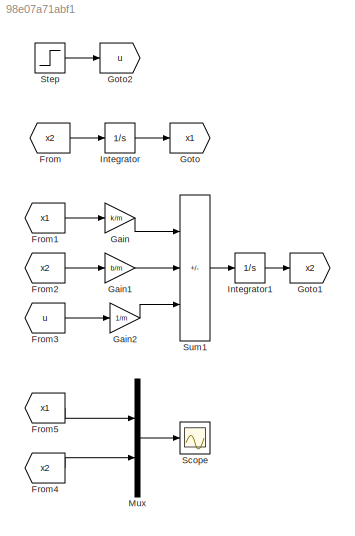
MODEL slx_98e07a71abf1
KIND model
CONFIG AbsTol = auto
CONFIG EnableMultiTasking = off
CONFIG FixedStep = 0.01
CONFIG MaxStep = auto
CONFIG MinStep = auto
CONFIG RelTol = 1e-3
CONFIG SampleTimeConstraint = Unconstrained
CONFIG SolverName = ode4
CONFIG StartTime = 0.0
CONFIG StopTime = 200
BLOCK [From] From
  GotoTag = x2
BLOCK [From] From1
  GotoTag = x1
BLOCK [From] From2
  GotoTag = x2
BLOCK [From] From3
  GotoTag = u
BLOCK [From] From4
  GotoTag = x2
BLOCK [From] From5
  GotoTag = x1
BLOCK [Gain] Gain
  Gain = k/m
BLOCK [Gain] Gain1
  Gain = b/m
BLOCK [Gain] Gain2
  Gain = 1/m
BLOCK [Goto] Goto
  GotoTag = x1
BLOCK [Goto] Goto1
  GotoTag = x2
BLOCK [Goto] Goto2
  GotoTag = u
BLOCK [Integrator] Integrator
  Ports = [1, 1]
BLOCK [Integrator] Integrator1
  Ports = [1, 1]
BLOCK [Mux] Mux
  DisplayOption = bar
  Inputs = 2
  Ports = [2, 1]
BLOCK [Scope] Scope
  Floating = off
  NumInputPorts = 1
  Ports = [1]
  ScopeSpecificationString = Simulink.scopes.TimeScopeBlockCfg('CurrentConfiguration', extmgr.ConfigurationSet(extmgr.Configuration('Core','General UI',true),extmgr.Configuration('Core','Source UI',true),extmgr.Configuration('Sources','WiredSimulink',true),extmgr.Configuration('Visuals','Time Domain',true,'SerializedDisplays',{struct('MinYLimReal','-0.00463','MaxYLimReal','0.01832','YLabelReal','','MinYLimMag','0.00000','MaxY...<+1425ch>
BLOCK [Step] Step
  SampleTime = 0
BLOCK [Sum] Sum1
  IconShape = rectangular
  Inputs = --+
  Ports = [3, 1]
LINE From1:1 -> Gain:1
LINE From2:1 -> Gain1:1
LINE From3:1 -> Gain2:1
LINE From4:1 -> Mux:2
LINE From5:1 -> Mux:1
LINE From:1 -> Integrator:1
LINE Gain1:1 -> Sum1:2
LINE Gain2:1 -> Sum1:3
LINE Gain:1 -> Sum1:1
LINE Integrator1:1 -> Goto1:1
LINE Integrator:1 -> Goto:1
LINE Mux:1 -> Scope:1
LINE Step:1 -> Goto2:1
LINE Sum1:1 -> Integrator1:1
